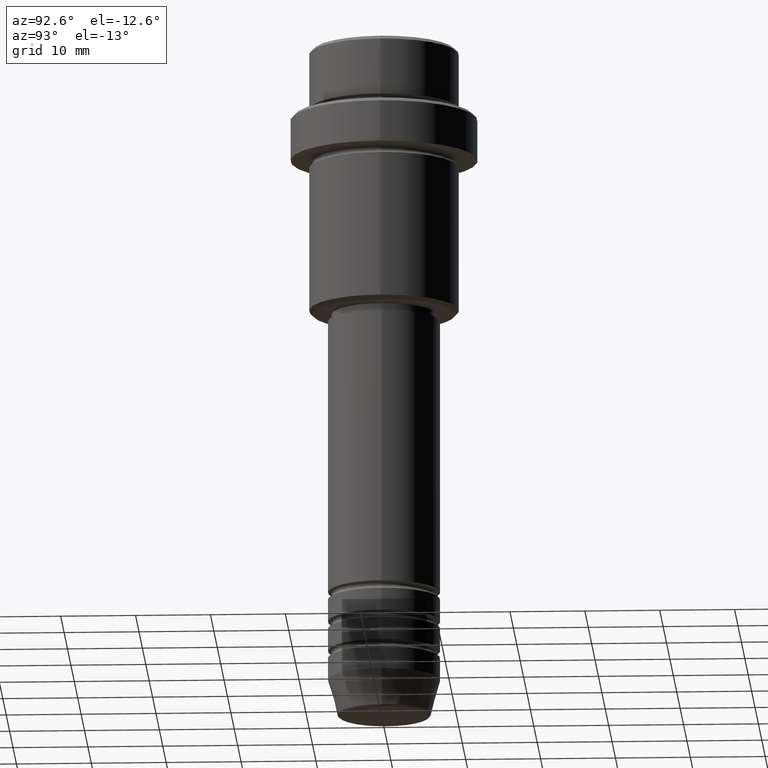
[diagram: clean part render]
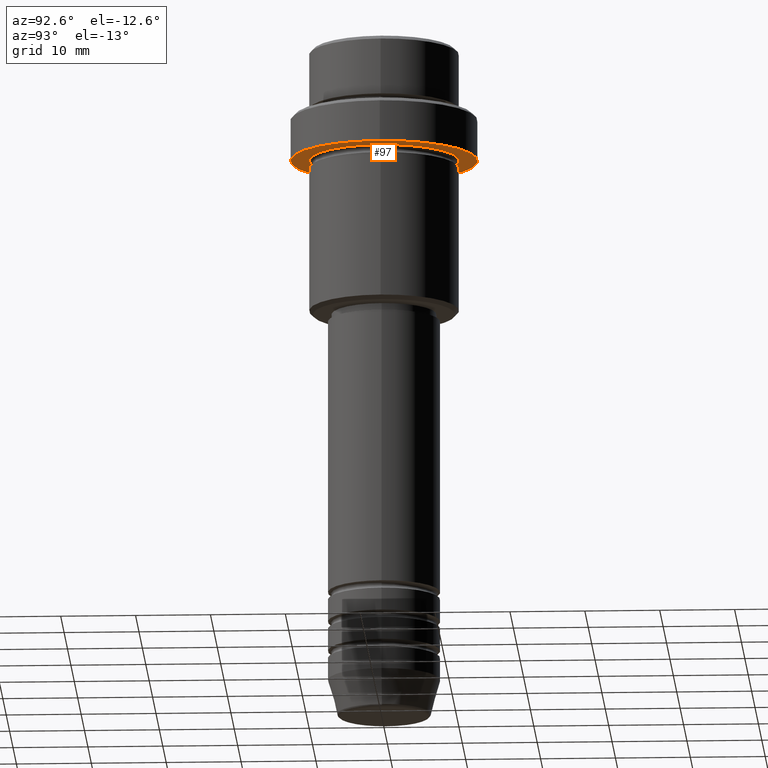
[diagram: same view with one face highlighted and labeled with its STEP entity id]
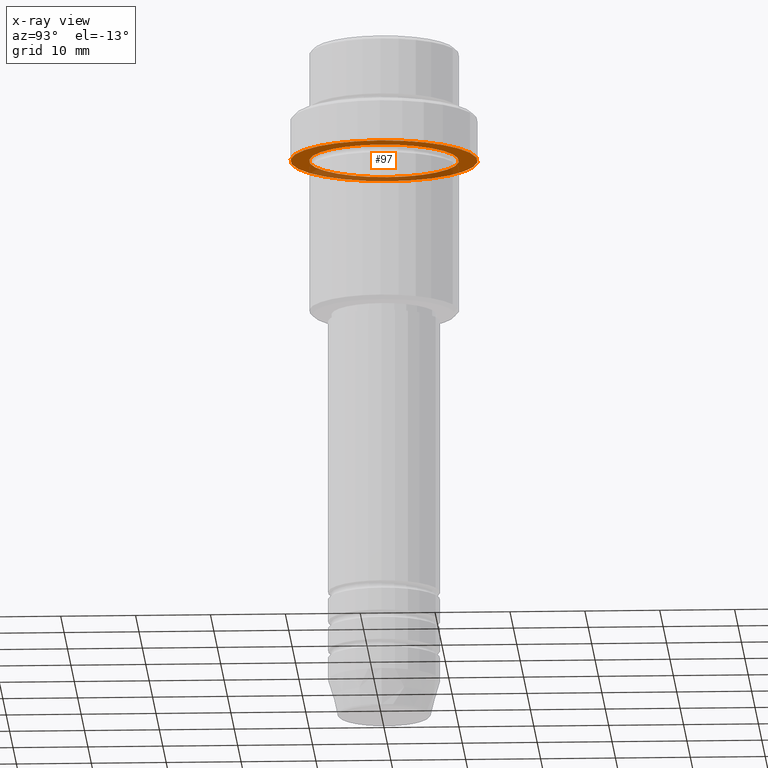
[diagram: x-ray of the same camera — body ghosted, the highlighted face saturated]
A machine part, auxiliary view. The second image highlights one B-rep face of the part: STEP entity #97.
The next image is the same camera in x-ray: the body ghosted, the highlighted face saturated — about 31% of this face is hidden behind the body in this view.
In plain terms, the highlighted planar face has unit normal (0, 0, -1).
Its self-contained STEP definition (entity closure, byte-faithful):
#30 = VERTEX_POINT ( 'NONE', #32 ) ;
#32 = CARTESIAN_POINT ( 'NONE',  ( 9.999999999999994671, 1.224646799147352665E-15, -15.00000000000000000 ) ) ;
#55 = DIRECTION ( 'NONE',  ( -1.000000000000000000, 0.000000000000000000, 0.000000000000000000 ) ) ;
#79 = DIRECTION ( 'NONE',  ( -0.000000000000000000, -0.000000000000000000, 1.000000000000000000 ) ) ;
#84 = CIRCLE ( 'NONE', #1407, 12.50000000000000000 ) ;
#97 = ADVANCED_FACE ( 'NONE', ( #603, #1151 ), #615, .T. ) ;
#135 = CARTESIAN_POINT ( 'NONE',  ( 12.50000000000000000, 0.000000000000000000, -15.00000000000000178 ) ) ;
#171 = CARTESIAN_POINT ( 'NONE',  ( 0.000000000000000000, 12.50000000000000000, -15.00000000000000000 ) ) ;
#187 = EDGE_LOOP ( 'NONE', ( #868, #363 ) ) ;
#227 = AXIS2_PLACEMENT_3D ( 'NONE', #171, #369, #923 ) ;
#230 = CIRCLE ( 'NONE', #520, 12.50000000000000000 ) ;
#235 = VERTEX_POINT ( 'NONE', #421 ) ;
#254 = CIRCLE ( 'NONE', #794, 9.999999999999994671 ) ;
#303 = CARTESIAN_POINT ( 'NONE',  ( 0.000000000000000000, 0.000000000000000000, -15.00000000000000000 ) ) ;
#322 = EDGE_CURVE ( 'NONE', #1103, #1318, #230, .T. ) ;
#350 = CARTESIAN_POINT ( 'NONE',  ( 0.000000000000000000, 0.000000000000000000, -15.00000000000000178 ) ) ;
#363 = ORIENTED_EDGE ( 'NONE', *, *, #491, .T. ) ;
#369 = DIRECTION ( 'NONE',  ( 0.000000000000000000, 0.000000000000000000, -1.000000000000000000 ) ) ;
#421 = CARTESIAN_POINT ( 'NONE',  ( -9.999999999999994671, 0.000000000000000000, -15.00000000000000000 ) ) ;
#430 = EDGE_CURVE ( 'NONE', #1318, #1103, #84, .T. ) ;
#455 = CARTESIAN_POINT ( 'NONE',  ( 0.000000000000000000, 0.000000000000000000, -15.00000000000000000 ) ) ;
#484 = DIRECTION ( 'NONE',  ( -0.000000000000000000, -0.000000000000000000, 1.000000000000000000 ) ) ;
#491 = EDGE_CURVE ( 'NONE', #30, #235, #254, .T. ) ;
#520 = AXIS2_PLACEMENT_3D ( 'NONE', #350, #797, #1224 ) ;
#527 = CARTESIAN_POINT ( 'NONE',  ( -12.50000000000000000, 1.530808498934191521E-15, -15.00000000000000178 ) ) ;
#529 = CIRCLE ( 'NONE', #1292, 9.999999999999994671 ) ;
#603 = FACE_BOUND ( 'NONE', #187, .T. ) ;
#615 = PLANE ( 'NONE',  #227 ) ;
#697 = CARTESIAN_POINT ( 'NONE',  ( 0.000000000000000000, 0.000000000000000000, -15.00000000000000178 ) ) ;
#764 = EDGE_LOOP ( 'NONE', ( #802, #1022 ) ) ;
#794 = AXIS2_PLACEMENT_3D ( 'NONE', #303, #79, #55 ) ;
#797 = DIRECTION ( 'NONE',  ( -0.000000000000000000, -0.000000000000000000, 1.000000000000000000 ) ) ;
#802 = ORIENTED_EDGE ( 'NONE', *, *, #430, .F. ) ;
#868 = ORIENTED_EDGE ( 'NONE', *, *, #1226, .T. ) ;
#913 = DIRECTION ( 'NONE',  ( 1.000000000000000000, 0.000000000000000000, 0.000000000000000000 ) ) ;
#923 = DIRECTION ( 'NONE',  ( -1.000000000000000000, 0.000000000000000000, -0.000000000000000000 ) ) ;
#997 = DIRECTION ( 'NONE',  ( -0.000000000000000000, -0.000000000000000000, 1.000000000000000000 ) ) ;
#1022 = ORIENTED_EDGE ( 'NONE', *, *, #322, .F. ) ;
#1103 = VERTEX_POINT ( 'NONE', #527 ) ;
#1151 = FACE_OUTER_BOUND ( 'NONE', #764, .T. ) ;
#1224 = DIRECTION ( 'NONE',  ( 1.000000000000000000, 0.000000000000000000, 0.000000000000000000 ) ) ;
#1226 = EDGE_CURVE ( 'NONE', #235, #30, #529, .T. ) ;
#1292 = AXIS2_PLACEMENT_3D ( 'NONE', #455, #997, #1319 ) ;
#1318 = VERTEX_POINT ( 'NONE', #135 ) ;
#1319 = DIRECTION ( 'NONE',  ( -1.000000000000000000, 0.000000000000000000, 0.000000000000000000 ) ) ;
#1407 = AXIS2_PLACEMENT_3D ( 'NONE', #697, #484, #913 ) ;